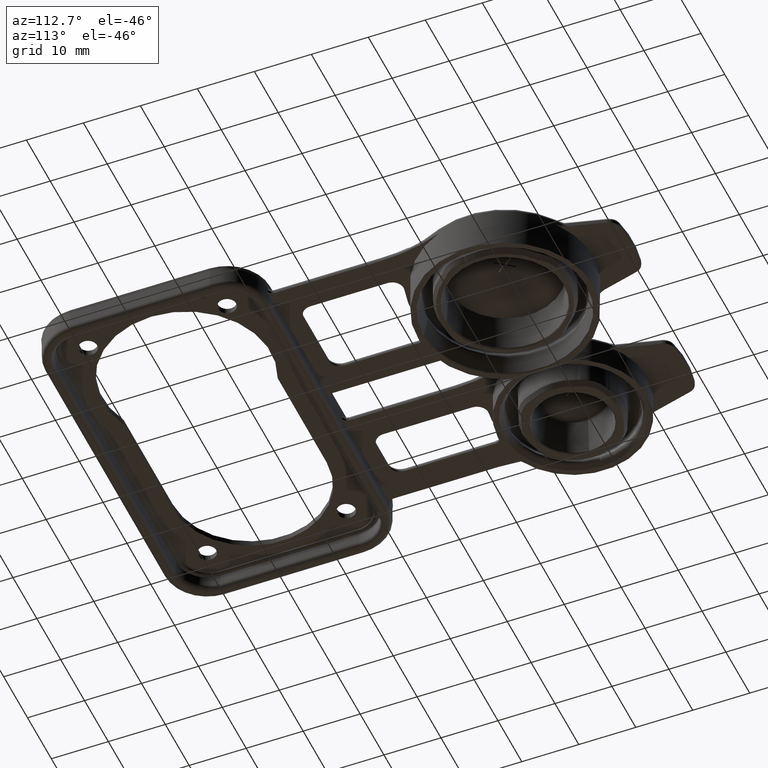
[diagram: clean part render]
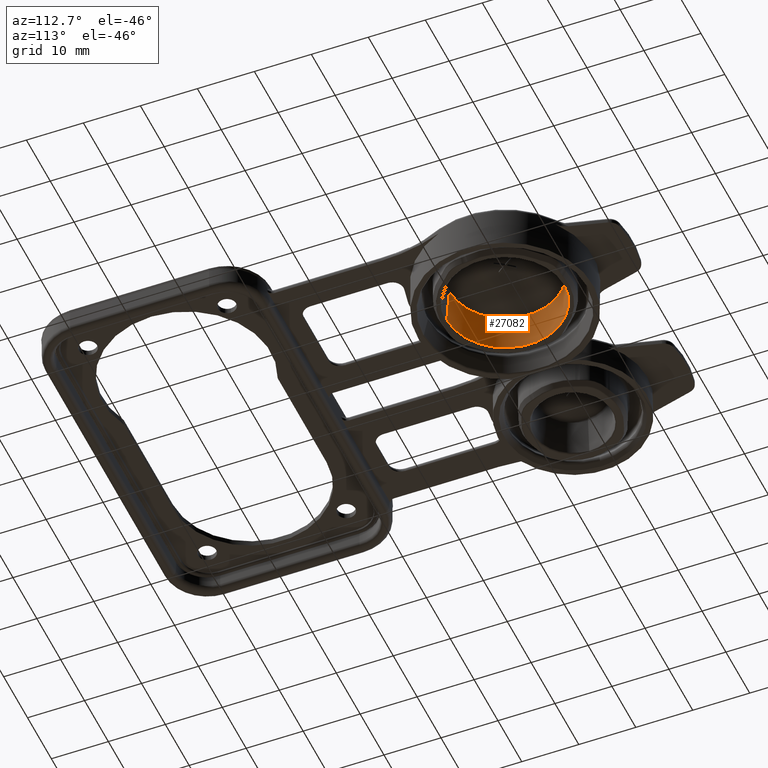
[diagram: same view with one face highlighted and labeled with its STEP entity id]
A machine part, auxiliary view. The second image highlights one B-rep face of the part: STEP entity #27082.
In plain terms, the highlighted conical surface has half-angle 4.377 deg.
Its self-contained STEP definition (entity closure, byte-faithful):
#6871=CARTESIAN_POINT('',(1.3E1,5.6E1,-5.120724443042E0));
#6872=DIRECTION('',(0.E0,0.E0,-1.E0));
#6873=DIRECTION('',(0.E0,-1.E0,0.E0));
#6874=AXIS2_PLACEMENT_3D('',#6871,#6872,#6873);
#6876=DIRECTION('',(3.429687747934E-10,-7.631179951756E-2,9.970840031083E-1));
#6877=VECTOR('',#6876,6.358258354776E0);
#6878=CARTESIAN_POINT('',(1.299999999782E1,6.627097215463E1,-5.120724443048E0));
#6879=LINE('',#6878,#6877);
#6880=DIRECTION('',(3.429673779039E-10,-7.631179951756E-2,-9.970840031083E-1));
#6881=VECTOR('',#6880,6.358258354776E0);
#6882=CARTESIAN_POINT('',(1.3E1,4.621423798222E1,1.218993250128E0));
#6883=LINE('',#6882,#6881);
#6934=CARTESIAN_POINT('',(1.3E1,5.6E1,1.218993250128E0));
#6935=DIRECTION('',(0.E0,0.E0,1.E0));
#6936=DIRECTION('',(0.E0,1.E0,0.E0));
#6937=AXIS2_PLACEMENT_3D('',#6934,#6935,#6936);
#15523=CARTESIAN_POINT('',(1.3E1,4.572902784537E1,-5.120724443042E0));
#15524=CARTESIAN_POINT('',(1.3E1,6.627097215463E1,-5.120724443042E0));
#15525=VERTEX_POINT('',#15523);
#15526=VERTEX_POINT('',#15524);
#16827=CARTESIAN_POINT('',(1.3E1,6.578576201778E1,1.218993250128E0));
#16828=CARTESIAN_POINT('',(1.3E1,4.621423798222E1,1.218993250128E0));
#16829=VERTEX_POINT('',#16827);
#16830=VERTEX_POINT('',#16828);
#27068=CARTESIAN_POINT('',(1.3E1,5.6E1,-1.950865596457E0));
#27069=DIRECTION('',(0.E0,0.E0,-1.E0));
#27070=DIRECTION('',(0.E0,-1.E0,0.E0));
#27071=AXIS2_PLACEMENT_3D('',#27068,#27069,#27070);
#27072=CONICAL_SURFACE('',#27071,1.002836708620E1,4.376598916578E0);
#27074=ORIENTED_EDGE('',*,*,#27073,.F.);
#27076=ORIENTED_EDGE('',*,*,#27075,.F.);
#27078=ORIENTED_EDGE('',*,*,#27077,.F.);
#27079=ORIENTED_EDGE('',*,*,#27058,.F.);
#27080=EDGE_LOOP('',(#27074,#27076,#27078,#27079));
#27081=FACE_OUTER_BOUND('',#27080,.F.);
#27082=ADVANCED_FACE('',(#27081),#27072,.F.);
#6875=CIRCLE('',#6874,1.027097215463E1);
#6938=CIRCLE('',#6937,9.785762017779E0);
#27058=EDGE_CURVE('',#15525,#15526,#6875,.T.);
#27073=EDGE_CURVE('',#16830,#15525,#6883,.T.);
#27075=EDGE_CURVE('',#16829,#16830,#6938,.T.);
#27077=EDGE_CURVE('',#15526,#16829,#6879,.T.);